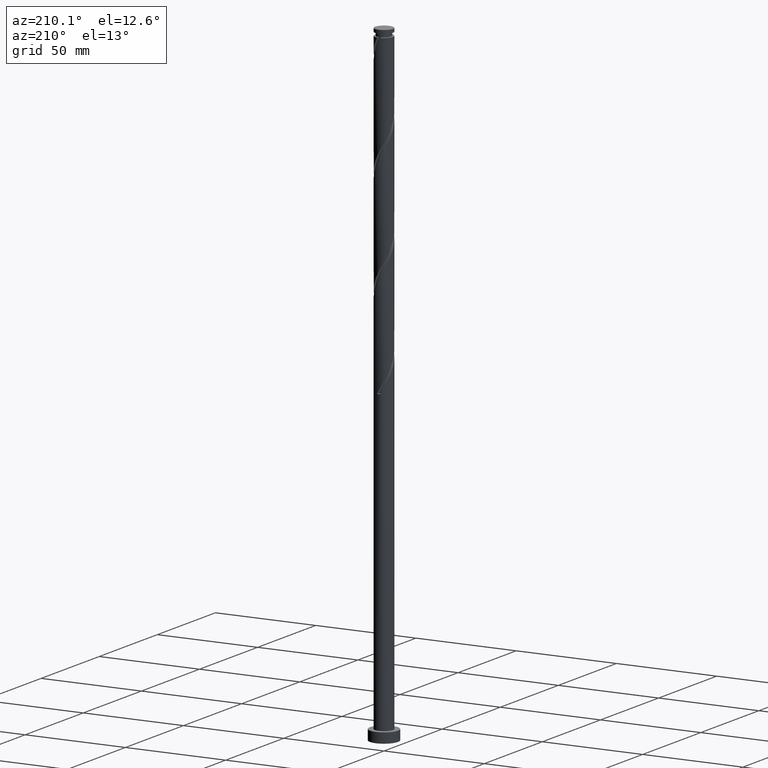
[diagram: clean part render]
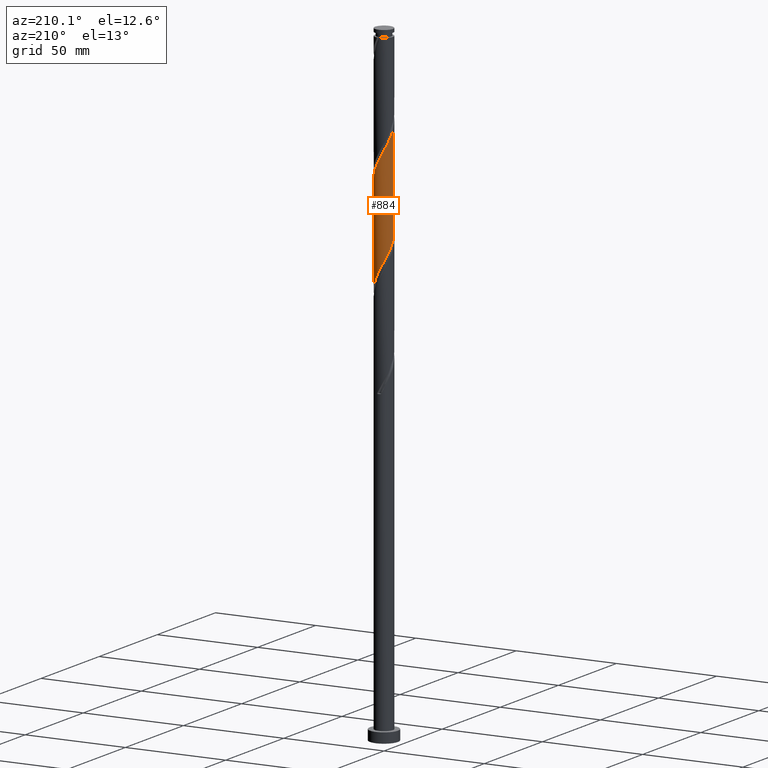
[diagram: same view with one face highlighted and labeled with its STEP entity id]
A machine part, auxiliary view. The second image highlights one B-rep face of the part: STEP entity #884.
In plain terms, the highlighted cylindrical surface (edge-blend (fillet) strip) has radius 4.5 mm, axis along (-0, -0, -1).
Its self-contained STEP definition (entity closure, byte-faithful):
#2 = CARTESIAN_POINT ( 'NONE',  ( 0.6151618214612609714, 4.486496802515032911, 256.1946435053399682 ) ) ;
#37 = CARTESIAN_POINT ( 'NONE',  ( 0.000000000000000000, 0.000000000000000000, 315.0000000000000000 ) ) ;
#48 = DIRECTION ( 'NONE',  ( -0.000000000000000000, -0.000000000000000000, -1.000000000000000000 ) ) ;
#61 = ORIENTED_EDGE ( 'NONE', *, *, #217, .F. ) ;
#67 = CARTESIAN_POINT ( 'NONE',  ( 2.316332123609147864, 3.891231568372337968, 203.6946435053401387 ) ) ;
#77 = CARTESIAN_POINT ( 'NONE',  ( 4.486496802515027582, 0.6151618214612573077, 196.1946435053400251 ) ) ;
#85 = CARTESIAN_POINT ( 'NONE',  ( -2.049468773505891406, 4.006204905696194807, 212.1321435053400251 ) ) ;
#106 = CARTESIAN_POINT ( 'NONE',  ( 3.775285233751811464, 2.500859658072927871, 199.9446435053399966 ) ) ;
#118 = CARTESIAN_POINT ( 'NONE',  ( 4.500000000000000000, 5.510910596163088569E-16, 315.0000000000000000 ) ) ;
#150 = CARTESIAN_POINT ( 'NONE',  ( 4.100167112320058926, 1.854354240982299729, 247.7571435053400535 ) ) ;
#217 = EDGE_CURVE ( 'NONE', #1463, #724, #497, .T. ) ;
#229 = CARTESIAN_POINT ( 'NONE',  ( 4.006204905696194807, 2.049468773505890962, 199.0071435053400251 ) ) ;
#243 = CARTESIAN_POINT ( 'NONE',  ( 4.498697073123629764, 0.1082803965123932677, 195.2571435053400251 ) ) ;
#275 = CARTESIAN_POINT ( 'NONE',  ( -4.498697073123638646, 0.1082803965123951967, 270.2571435053400819 ) ) ;
#293 = CARTESIAN_POINT ( 'NONE',  ( -4.500000000000006217, 2.313494895836544447E-16, 270.4576264274340360 ) ) ;
#295 = EDGE_CURVE ( 'NONE', #724, #1913, #1402, .T. ) ;
#317 = CARTESIAN_POINT ( 'NONE',  ( -0.3986010284364690515, 4.510897343732239051, 258.0696435053400251 ) ) ;
#357 = CARTESIAN_POINT ( 'NONE',  ( -4.500000000000006217, 2.313494895836544447E-16, 270.4576264274340360 ) ) ;
#391 = CARTESIAN_POINT ( 'NONE',  ( 0.3986010284364700507, 4.510897343732231946, 207.4446435053400819 ) ) ;
#393 = EDGE_LOOP ( 'NONE', ( #61, #965, #1065, #488 ) ) ;
#399 = CARTESIAN_POINT ( 'NONE',  ( -0.6151618214612581959, 4.486496802515027582, 209.3196435053400535 ) ) ;
#434 = CARTESIAN_POINT ( 'NONE',  ( -4.500000000000000000, -1.078387136930267496E-14, 221.3066605832461562 ) ) ;
#435 = CARTESIAN_POINT ( 'NONE',  ( 4.410000000000006359, 0.8954886933959596007, 245.8821435053400535 ) ) ;
#464 = CARTESIAN_POINT ( 'NONE',  ( -2.720234723816809641, 3.584734724821537544, 262.7571435053400251 ) ) ;
#488 = ORIENTED_EDGE ( 'NONE', *, *, #295, .F. ) ;
#497 =( BOUNDED_CURVE ( )  B_SPLINE_CURVE ( 2, ( #1314, #1775, #435, #1324, #150, #875, #1471, #906, #1343, #739, #588, #1334, #1178, #2, #597, #317, #1786, #1200, #1608, #1797, #464, #1355, #1052, #1647, #864, #1156, #1755, #1011, #275, #1552, #357 ),
 .UNSPECIFIED., .F., .T. ) 
 B_SPLINE_CURVE_WITH_KNOTS ( ( 3, 2, 2, 2, 2, 2, 2, 2, 2, 2, 2, 2, 2, 2, 2, 3 ),
 ( 0.4295303401299219725, 0.4375000000000000000, 0.4464285714285713969, 0.4553571428571429047, 0.4642857142857143016, 0.4732142857142856984, 0.4821428571428570953, 0.4910714285714286031, 0.5000000000000000000, 0.5089285714285713969, 0.5178571428571427937, 0.5267857142857143016, 0.5357142857142856984, 0.5446428571428572063, 0.5535714285714286031, 0.5545303401299223056 ),
 .UNSPECIFIED. ) 
 CURVE ( )  GEOMETRIC_REPRESENTATION_ITEM ( )  RATIONAL_B_SPLINE_CURVE ( ( 0.9079949616362078535, 0.9039886423360707912, 0.9090909090909374823, 0.9033747362666124658, 0.9090909090909374823, 0.9033747362666124658, 0.9090909090909374823, 0.9033747362666124658, 0.9090909090909374823, 0.9033747362666124658, 0.9090909090909374823, 0.9033747362666124658, 0.9090909090909374823, 0.9033747362666124658, 0.9090909090909374823, 0.9033747362666124658, 0.9090909090909374823, 0.9033747362666124658, 0.9090909090909374823, 0.9033747362666124658, 0.9090909090909374823, 0.9033747362666124658, 0.9090909090909374823, 0.9033747362666124658, 0.9090909090909374823, 0.9033747362666124658, 0.9090909090909374823, 0.9033747362666124658, 0.9090909090909374823, 0.9084770030214790459, 0.9079949616362072984 ) ) 
 REPRESENTATION_ITEM ( '' )  );
#503 = EDGE_CURVE ( 'NONE', #1913, #930, #1281, .T. ) ;
#512 = CYLINDRICAL_SURFACE ( 'NONE', #1068, 4.500000000000000000 ) ;
#514 = CARTESIAN_POINT ( 'NONE',  ( -4.500000000000000000, 0.000000000000000000, 315.0000000000000000 ) ) ;
#522 = CARTESIAN_POINT ( 'NONE',  ( 1.854354240982299507, 4.100167112320051821, 204.6321435053400251 ) ) ;
#535 = CARTESIAN_POINT ( 'NONE',  ( -4.410000000000000142, 0.8954886933959599338, 219.6321435053400251 ) ) ;
#540 = VECTOR ( 'NONE', #710, 1000.000000000000000 ) ;
#544 = CARTESIAN_POINT ( 'NONE',  ( -4.500000000000000888, 0.4522670168666411139, 220.4683895042825270 ) ) ;
#588 = CARTESIAN_POINT ( 'NONE',  ( 2.049468773505896735, 4.006204905696198360, 253.3821435053400535 ) ) ;
#597 = CARTESIAN_POINT ( 'NONE',  ( 0.1082803965123961543, 4.498697073123635981, 257.1321435053400819 ) ) ;
#710 = DIRECTION ( 'NONE',  ( -0.000000000000000000, -0.000000000000000000, -1.000000000000000000 ) ) ;
#724 = VERTEX_POINT ( 'NONE', #293 ) ;
#739 = CARTESIAN_POINT ( 'NONE',  ( 2.500859658072934089, 3.775285233751815017, 252.4446435053399682 ) ) ;
#817 = CARTESIAN_POINT ( 'NONE',  ( 4.237124577640575929, 1.598077888938854052, 198.0696435053400535 ) ) ;
#824 = CARTESIAN_POINT ( 'NONE',  ( -4.500000000000000000, -1.078387136930267496E-14, 221.3066605832461562 ) ) ;
#833 = CARTESIAN_POINT ( 'NONE',  ( 4.500000000000000000, 0.05414803724874861501, 195.1570232714711608 ) ) ;
#842 = CARTESIAN_POINT ( 'NONE',  ( -2.500859658072928760, 3.775285233751811020, 213.0696435053400535 ) ) ;
#852 = CARTESIAN_POINT ( 'NONE',  ( 3.124137324024464313, 3.278237881270724241, 201.8196435053400251 ) ) ;
#864 = CARTESIAN_POINT ( 'NONE',  ( -4.006204905696199248, 2.049468773505896735, 266.5071435053399682 ) ) ;
#875 = CARTESIAN_POINT ( 'NONE',  ( 3.891231568372342853, 2.316332123609148752, 248.6946435053399966 ) ) ;
#884 = ADVANCED_FACE ( 'NONE', ( #1667 ), #512, .T. ) ;
#906 = CARTESIAN_POINT ( 'NONE',  ( 3.278237881270730458, 3.124137324024466089, 250.5696435053400535 ) ) ;
#930 = VERTEX_POINT ( 'NONE', #1374 ) ;
#963 = CARTESIAN_POINT ( 'NONE',  ( -4.100167112320052709, 1.854354240982298840, 217.7571435053400251 ) ) ;
#965 = ORIENTED_EDGE ( 'NONE', *, *, #1796, .T. ) ;
#988 = CARTESIAN_POINT ( 'NONE',  ( 3.449711278888136778, 2.889548769671827166, 200.8821435053400251 ) ) ;
#1011 = CARTESIAN_POINT ( 'NONE',  ( -4.486496802515032911, 0.6151618214612597502, 269.3196435053399682 ) ) ;
#1052 = CARTESIAN_POINT ( 'NONE',  ( -3.449711278888141663, 2.889548769671832495, 264.6321435053400251 ) ) ;
#1065 = ORIENTED_EDGE ( 'NONE', *, *, #503, .F. ) ;
#1068 = AXIS2_PLACEMENT_3D ( 'NONE', #37, #48, #1655 ) ;
#1117 = CARTESIAN_POINT ( 'NONE',  ( -3.584734724821531326, 2.720234723816805200, 215.8821435053400251 ) ) ;
#1126 = CARTESIAN_POINT ( 'NONE',  ( -1.598077888938855162, 4.237124577640576817, 211.1946435053400535 ) ) ;
#1133 = CARTESIAN_POINT ( 'NONE',  ( -3.278237881270725573, 3.124137324024463425, 214.9446435053400251 ) ) ;
#1156 = CARTESIAN_POINT ( 'NONE',  ( -4.237124577640583034, 1.598077888938857605, 267.4446435053400251 ) ) ;
#1178 = CARTESIAN_POINT ( 'NONE',  ( 1.106619855200059899, 4.361810690077811081, 255.2571435053400535 ) ) ;
#1200 = CARTESIAN_POINT ( 'NONE',  ( -1.392376358355450927, 4.309102656267771891, 259.9446435053399114 ) ) ;
#1212 = CARTESIAN_POINT ( 'NONE',  ( 4.500000000000005329, -1.865721690190761372E-16, 244.2076264274339223 ) ) ;
#1281 =( BOUNDED_CURVE ( )  B_SPLINE_CURVE ( 2, ( #824, #544, #535, #1569, #963, #1886, #1117, #1133, #1417, #842, #85, #1126, #1722, #399, #1559, #391, #1437, #1576, #522, #67, #1595, #852, #988, #106, #229, #817, #1410, #77, #243, #833, #1426 ),
 .UNSPECIFIED., .F., .T. ) 
 B_SPLINE_CURVE_WITH_KNOTS ( ( 3, 2, 2, 2, 2, 2, 2, 2, 2, 2, 2, 2, 2, 2, 2, 3 ),
 ( 0.6795303401299219725, 0.6875000000000000000, 0.6964285714285713969, 0.7053571428571429047, 0.7142857142857143016, 0.7232142857142856984, 0.7321428571428570953, 0.7410714285714286031, 0.7500000000000000000, 0.7589285714285713969, 0.7678571428571429047, 0.7767857142857143016, 0.7857142857142856984, 0.7946428571428570953, 0.8035714285714286031, 0.8045303401299221946 ),
 .UNSPECIFIED. ) 
 CURVE ( )  GEOMETRIC_REPRESENTATION_ITEM ( )  RATIONAL_B_SPLINE_CURVE ( ( 0.9079949616362011922, 0.9039886423360642409, 0.9090909090909310430, 0.9033747362666060265, 0.9090909090909310430, 0.9033747362666060265, 0.9090909090909310430, 0.9033747362666060265, 0.9090909090909310430, 0.9033747362666060265, 0.9090909090909310430, 0.9033747362666060265, 0.9090909090909310430, 0.9033747362666060265, 0.9090909090909310430, 0.9033747362666060265, 0.9090909090909310430, 0.9033747362666060265, 0.9090909090909310430, 0.9033747362666060265, 0.9090909090909310430, 0.9033747362666060265, 0.9090909090909310430, 0.9033747362666060265, 0.9090909090909310430, 0.9033747362666060265, 0.9090909090909310430, 0.9033747362666060265, 0.9090909090909310430, 0.9084770030214727177, 0.9079949616362010811 ) ) 
 REPRESENTATION_ITEM ( '' )  );
#1314 = CARTESIAN_POINT ( 'NONE',  ( 4.500000000000005329, -1.865721690190761372E-16, 244.2076264274339223 ) ) ;
#1324 = CARTESIAN_POINT ( 'NONE',  ( 4.309102656267771891, 1.392376358355450039, 246.8196435053399966 ) ) ;
#1334 = CARTESIAN_POINT ( 'NONE',  ( 1.598077888938858493, 4.237124577640583034, 254.3196435053399398 ) ) ;
#1343 = CARTESIAN_POINT ( 'NONE',  ( 2.889548769671832940, 3.449711278888141219, 251.5071435053401103 ) ) ;
#1355 = CARTESIAN_POINT ( 'NONE',  ( -3.124137324024466533, 3.278237881270730458, 263.6946435053400251 ) ) ;
#1374 = CARTESIAN_POINT ( 'NONE',  ( 4.499999999999999112, -2.209014481185876808E-15, 195.0566605832460709 ) ) ;
#1402 = LINE ( 'NONE', #514, #1782 ) ;
#1410 = CARTESIAN_POINT ( 'NONE',  ( 4.361810690077805752, 1.106619855200055680, 197.1321435053400251 ) ) ;
#1417 = CARTESIAN_POINT ( 'NONE',  ( -2.889548769671827610, 3.449711278888136778, 214.0071435053400251 ) ) ;
#1426 = CARTESIAN_POINT ( 'NONE',  ( 4.499999999999998224, -2.209014481185876808E-15, 195.0566605832460709 ) ) ;
#1437 = CARTESIAN_POINT ( 'NONE',  ( 0.8954886933959607109, 4.410000000000000142, 206.5071435053400819 ) ) ;
#1463 = VERTEX_POINT ( 'NONE', #1212 ) ;
#1471 = CARTESIAN_POINT ( 'NONE',  ( 3.584734724821537988, 2.720234723816808753, 249.6321435053400251 ) ) ;
#1512 = DIRECTION ( 'NONE',  ( -0.000000000000000000, -0.000000000000000000, -1.000000000000000000 ) ) ;
#1552 = CARTESIAN_POINT ( 'NONE',  ( -4.500000000000007105, 0.05414803724874418106, 270.3572637392089746 ) ) ;
#1559 = CARTESIAN_POINT ( 'NONE',  ( -0.1082803965123941004, 4.498697073123629764, 208.3821435053400535 ) ) ;
#1569 = CARTESIAN_POINT ( 'NONE',  ( -4.309102656267766562, 1.392376358355449817, 218.6946435053400819 ) ) ;
#1576 = CARTESIAN_POINT ( 'NONE',  ( 1.392376358355450261, 4.309102656267766562, 205.5696435053400819 ) ) ;
#1595 = CARTESIAN_POINT ( 'NONE',  ( 2.720234723816806532, 3.584734724821531326, 202.7571435053399966 ) ) ;
#1608 = CARTESIAN_POINT ( 'NONE',  ( -1.854354240982300395, 4.100167112320058926, 260.8821435053400819 ) ) ;
#1647 = CARTESIAN_POINT ( 'NONE',  ( -3.775285233751815461, 2.500859658072933200, 265.5696435053399114 ) ) ;
#1655 = DIRECTION ( 'NONE',  ( -1.000000000000000000, 0.000000000000000000, 0.000000000000000000 ) ) ;
#1667 = FACE_OUTER_BOUND ( 'NONE', #393, .T. ) ;
#1722 = CARTESIAN_POINT ( 'NONE',  ( -1.106619855200056346, 4.361810690077804864, 210.2571435053400535 ) ) ;
#1754 = LINE ( 'NONE', #118, #540 ) ;
#1755 = CARTESIAN_POINT ( 'NONE',  ( -4.361810690077811081, 1.106619855200058566, 268.3821435053401387 ) ) ;
#1775 = CARTESIAN_POINT ( 'NONE',  ( 4.500000000000007105, 0.4522670168666400592, 245.0458975063974947 ) ) ;
#1782 = VECTOR ( 'NONE', #1512, 1000.000000000000000 ) ;
#1786 = CARTESIAN_POINT ( 'NONE',  ( -0.8954886933959593787, 4.410000000000006359, 259.0071435053400251 ) ) ;
#1796 = EDGE_CURVE ( 'NONE', #1463, #930, #1754, .T. ) ;
#1797 = CARTESIAN_POINT ( 'NONE',  ( -2.316332123609149640, 3.891231568372342853, 261.8196435053400251 ) ) ;
#1886 = CARTESIAN_POINT ( 'NONE',  ( -3.891231568372337968, 2.316332123609147420, 216.8196435053401387 ) ) ;
#1913 = VERTEX_POINT ( 'NONE', #434 ) ;